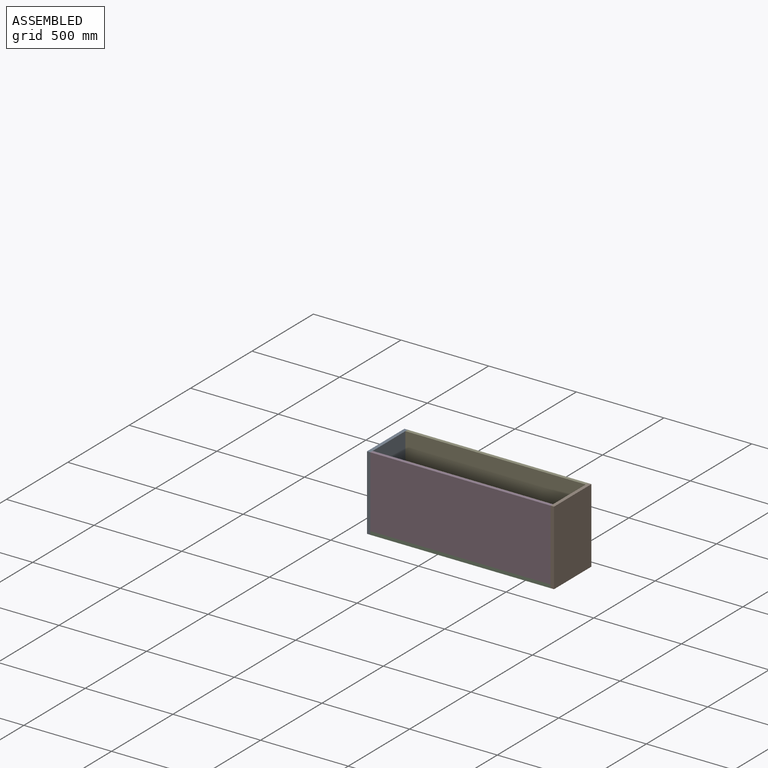
[diagram: assembled view]
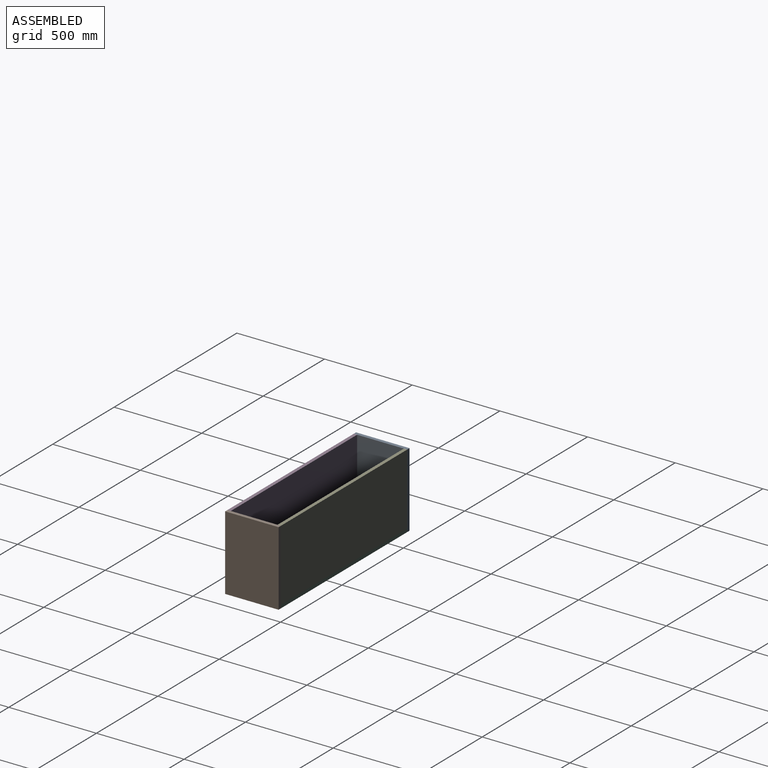
[diagram: assembled view, second angle]
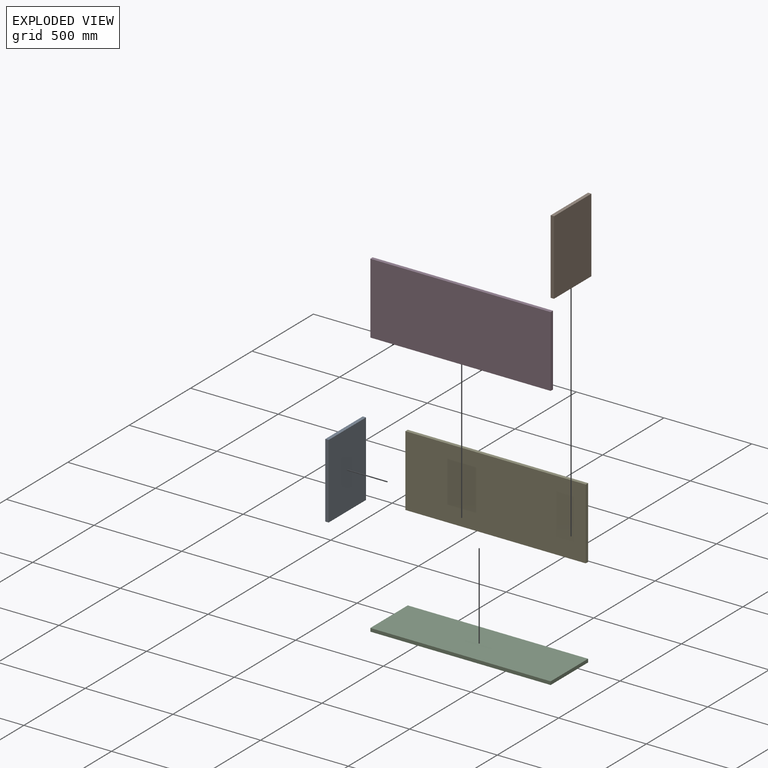
[diagram: exploded view]
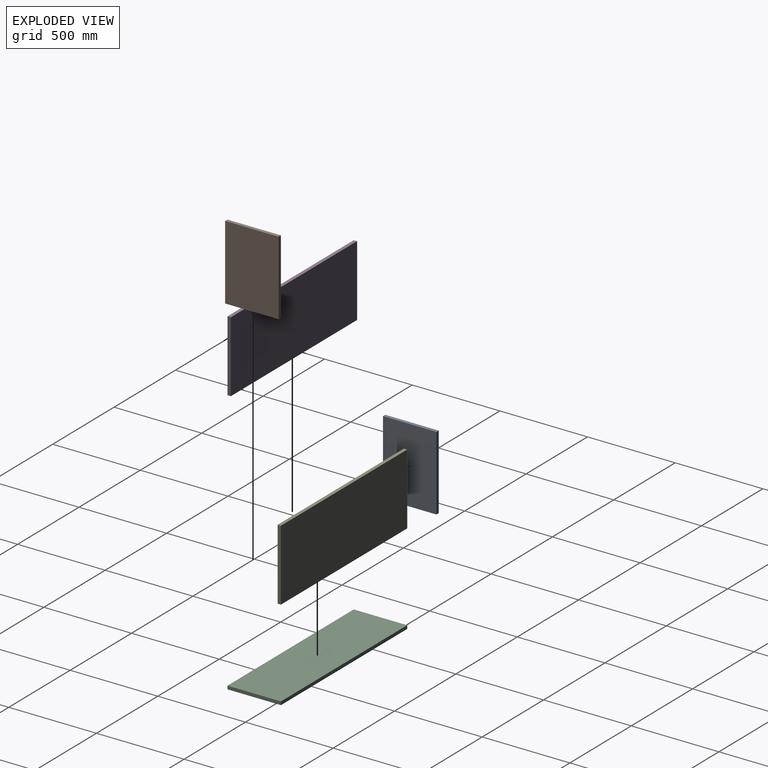
[diagram: exploded view, second angle]
ASSEMBLY  parts=5 mates=4
PART A: 6 faces, bbox 19.1x304.8x425.5 mm
  f0: plane 425.45x19.05mm, normal (0,1,0), area 8104.8mm2, adj f1,f3,f4,f5
  f1: plane 304.8x19.05mm, normal (0,0,1), area 5806.4mm2, adj f0,f2,f4,f5
  f2: plane 425.45x19.05mm, normal (0,-1,0), area 8104.8mm2, adj f1,f3,f4,f5
  f3: plane 304.8x19.05mm, normal (0,0,-1), area 5806.4mm2, adj f0,f2,f4,f5
  f4: plane 425.45x304.8mm, normal (1,0,0), area 129677.2mm2, adj f0,f1,f2,f3
  f5: plane 425.45x304.8mm, normal (-1,0,0), area 129677.2mm2, adj f0,f1,f2,f3
PART B: same geometry as A
PART C: 6 faces, bbox 1028.7x304.8x19.1 mm
  f0: plane 304.8x19.05mm, normal (1,0,0), area 5806.4mm2, adj f1,f3,f4,f5
  f1: plane 1028.7x19.05mm, normal (0,1,0), area 19596.7mm2, adj f0,f2,f4,f5
  f2: plane 304.8x19.05mm, normal (-1,0,0), area 5806.4mm2, adj f1,f3,f4,f5
  f3: plane 1028.7x19.05mm, normal (0,-1,0), area 19596.7mm2, adj f0,f2,f4,f5
  f4: plane 1028.7x304.8mm, normal (0,0,1), area 313547.8mm2, adj f0,f1,f2,f3
  f5: plane 1028.7x304.8mm, normal (0,0,-1), area 313547.8mm2, adj f0,f1,f2,f3
PART D: 6 faces, bbox 1028.7x19.1x406.4 mm
  f0: plane 406.4x19.05mm, normal (-1,0,0), area 7741.9mm2, adj f1,f3,f4,f5
  f1: plane 1028.7x19.05mm, normal (0,0,-1), area 19596.7mm2, adj f0,f2,f4,f5
  f2: plane 406.4x19.05mm, normal (1,0,0), area 7741.9mm2, adj f1,f3,f4,f5
  f3: plane 1028.7x19.05mm, normal (0,0,1), area 19596.7mm2, adj f0,f2,f4,f5
  f4: plane 1028.7x406.4mm, normal (0,-1,0), area 418063.7mm2, adj f0,f1,f2,f3
  f5: plane 1028.7x406.4mm, normal (0,1,0), area 418063.7mm2, adj f0,f1,f2,f3
PART E: same geometry as D
PLACE A t=(-765.05,-497.96,-91.84)mm
PLACE B t=(282.7,-497.96,-91.84)mm
PLACE C t=(195.6,-1563.38,151.59)mm
PLACE D t=(183.47,-1235.6,529.37)mm
PLACE E t=(183.47,-949.85,529.37)mm
MATE fastened C.f2 <-> D.f0  axis (-1,0,0) through (-746,-1254.65,170.64)mm
MATE fastened C.f4 <-> E.f1  axis (0,0,1) through (-746,-949.85,170.64)mm
MATE fastened C.f5 <-> B.f3  axis (0,0,1) through (282.7,-1254.65,151.59)mm
MATE fastened A.f3 <-> C.f5  axis (0,0,1) through (-746,-1254.65,151.59)mm
